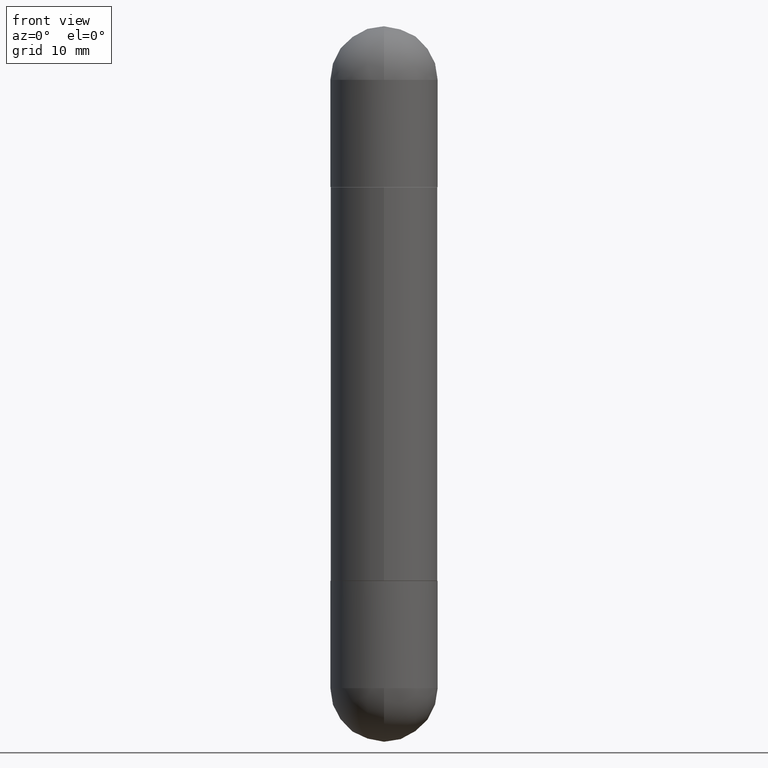
[diagram: clean part render]
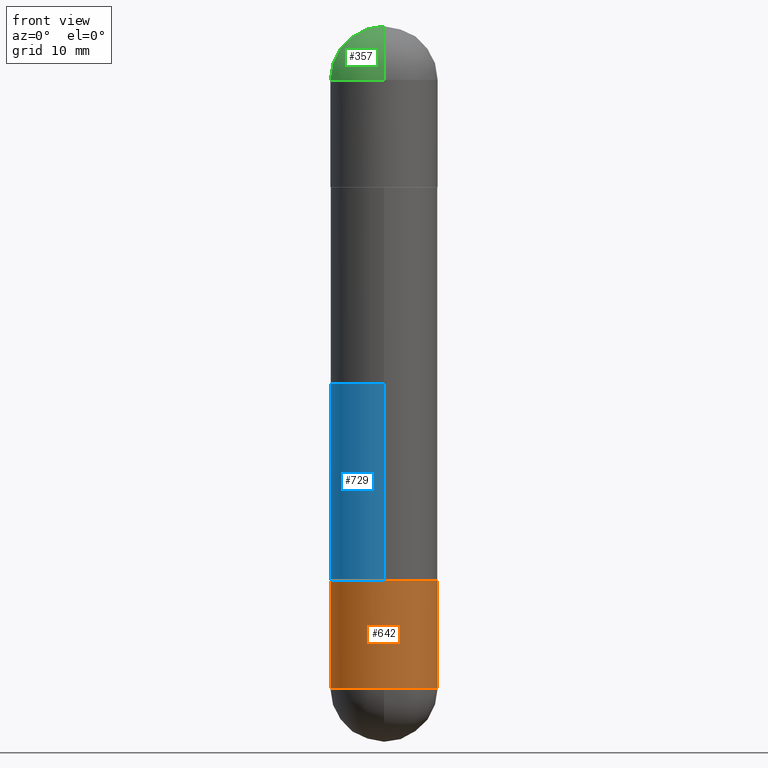
[diagram: same view with three faces highlighted in distinct colors, each labeled with its STEP entity id]
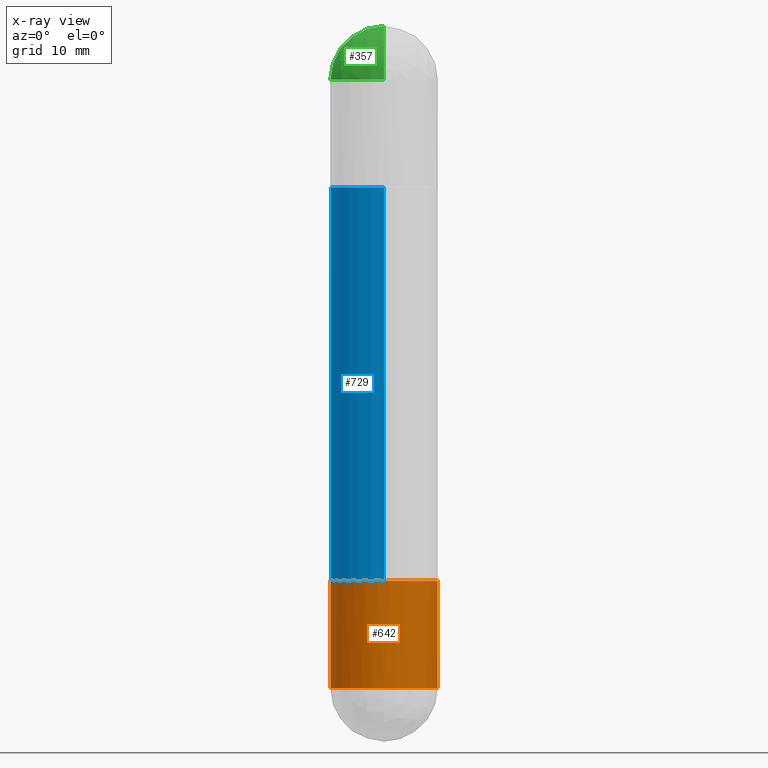
[diagram: x-ray of the same camera — body ghosted, the three highlighted faces saturated]
A machine part, front view with three faces highlighted in distinct colors.
The next image is the same camera in x-ray (body ghosted, the three faces saturated) — at least one of them is partly hidden behind the body in this view.
Their STEP definitions:

[orange] entity #642 — the highlighted cylindrical surface (partial cylindrical patch) has radius 4.7625 mm, axis along (-0, 0, 1).
#14 = EDGE_CURVE ( 'NONE', #319, #111, #464, .T. ) ;
#31 = CARTESIAN_POINT ( 'NONE',  ( -1.332267629550134009E-15, -0.1875000000000084932, -2.312499999999999556 ) ) ;
#35 = EDGE_CURVE ( 'NONE', #200, #319, #604, .T. ) ;
#45 = DIRECTION ( 'NONE',  ( 1.000000000000000000, -6.982962677686270655E-15, 0.000000000000000000 ) ) ;
#53 = CARTESIAN_POINT ( 'NONE',  ( 0.1875000000000000555, -8.729576217442571356E-15, -2.312500000000000000 ) ) ;
#54 = ORIENTED_EDGE ( 'NONE', *, *, #742, .T. ) ;
#55 = AXIS2_PLACEMENT_3D ( 'NONE', #779, #156, #600 ) ;
#76 = DIRECTION ( 'NONE',  ( -2.445468806185136877E-29, 3.491481338843145188E-15, 1.000000000000000000 ) ) ;
#111 = VERTEX_POINT ( 'NONE', #145 ) ;
#145 = CARTESIAN_POINT ( 'NONE',  ( 0.1875000000000000278, -8.075796336744191053E-15, -1.937999999999999945 ) ) ;
#156 = DIRECTION ( 'NONE',  ( -2.445468806185136597E-29, 3.491481338843145583E-15, 1.000000000000000000 ) ) ;
#170 = VERTEX_POINT ( 'NONE', #412 ) ;
#191 = ORIENTED_EDGE ( 'NONE', *, *, #35, .T. ) ;
#194 = DIRECTION ( 'NONE',  ( -2.445468806185136597E-29, 3.491481338843145583E-15, 1.000000000000000000 ) ) ;
#200 = VERTEX_POINT ( 'NONE', #31 ) ;
#209 = DIRECTION ( 'NONE',  ( 1.000000000000000000, -6.982962677686270655E-15, 0.000000000000000000 ) ) ;
#254 = CARTESIAN_POINT ( 'NONE',  ( 0.1875000000000000555, -1.309305502066175205E-15, 9.142831454617382414E-30 ) ) ;
#319 = VERTEX_POINT ( 'NONE', #53 ) ;
#327 = EDGE_CURVE ( 'NONE', #170, #619, #694, .T. ) ;
#332 = ORIENTED_EDGE ( 'NONE', *, *, #14, .T. ) ;
#359 = CARTESIAN_POINT ( 'NONE',  ( -0.1875000000000000555, 1.332267629550188243E-15, -9.223003294227950793E-30 ) ) ;
#367 = DIRECTION ( 'NONE',  ( -2.445468806185136877E-29, 3.491481338843145188E-15, 1.000000000000000000 ) ) ;
#369 = CARTESIAN_POINT ( 'NONE',  ( 4.739318546386794397E-29, -6.766490834678016045E-15, -1.937999999999999945 ) ) ;
#373 = DIRECTION ( 'NONE',  ( -2.445468806185136597E-29, 3.491481338843145583E-15, 1.000000000000000000 ) ) ;
#402 = AXIS2_PLACEMENT_3D ( 'NONE', #448, #194, #209 ) ;
#412 = CARTESIAN_POINT ( 'NONE',  ( -0.1875000000000000555, -6.088003085826207710E-15, -2.312500000000000000 ) ) ;
#418 = ORIENTED_EDGE ( 'NONE', *, *, #737, .F. ) ;
#448 = CARTESIAN_POINT ( 'NONE',  ( 5.655146614303128380E-29, -8.074050596074775072E-15, -2.312500000000000000 ) ) ;
#457 = ORIENTED_EDGE ( 'NONE', *, *, #327, .F. ) ;
#464 = LINE ( 'NONE', #254, #482 ) ;
#482 = VECTOR ( 'NONE', #76, 39.37007874015748143 ) ;
#490 = CARTESIAN_POINT ( 'NONE',  ( 5.655146614303128380E-29, -8.074050596074775072E-15, -2.312500000000000000 ) ) ;
#540 = CIRCLE ( 'NONE', #646, 0.1875000000000000278 ) ;
#600 = DIRECTION ( 'NONE',  ( 1.000000000000000000, -6.982962677686265922E-15, 4.876176775795935793E-29 ) ) ;
#604 = CIRCLE ( 'NONE', #402, 0.1875000000000000555 ) ;
#610 = CARTESIAN_POINT ( 'NONE',  ( -0.1875000000000000278, -6.088003085826206921E-15, -1.937999999999999945 ) ) ;
#619 = VERTEX_POINT ( 'NONE', #610 ) ;
#630 = EDGE_LOOP ( 'NONE', ( #457, #54, #191, #332, #418 ) ) ;
#632 = AXIS2_PLACEMENT_3D ( 'NONE', #490, #373, #45 ) ;
#642 = ADVANCED_FACE ( 'NONE', ( #665 ), #791, .T. ) ;
#646 = AXIS2_PLACEMENT_3D ( 'NONE', #369, #684, #797 ) ;
#665 = FACE_OUTER_BOUND ( 'NONE', #630, .T. ) ;
#684 = DIRECTION ( 'NONE',  ( -2.445468806185136597E-29, 3.491481338843145583E-15, 1.000000000000000000 ) ) ;
#694 = LINE ( 'NONE', #359, #709 ) ;
#709 = VECTOR ( 'NONE', #367, 39.37007874015748143 ) ;
#737 = EDGE_CURVE ( 'NONE', #619, #111, #540, .T. ) ;
#742 = EDGE_CURVE ( 'NONE', #170, #200, #792, .T. ) ;
#779 = CARTESIAN_POINT ( 'NONE',  ( 0.000000000000000000, 0.000000000000000000, 0.000000000000000000 ) ) ;
#791 = CYLINDRICAL_SURFACE ( 'NONE', #55, 0.1875000000000000555 ) ;
#792 = CIRCLE ( 'NONE', #632, 0.1875000000000000555 ) ;
#797 = DIRECTION ( 'NONE',  ( 1.000000000000000000, -6.982962677686266711E-15, 0.000000000000000000 ) ) ;

[blue] entity #729 — the highlighted cylindrical surface (partial cylindrical patch) has radius 4.7625 mm, axis along (-0, 0, -1).
#7 = CARTESIAN_POINT ( 'NONE',  ( 1.286343374582193722E-15, 0.1874999999999934497, -1.937000000000000499 ) ) ;
#12 = VERTEX_POINT ( 'NONE', #72 ) ;
#42 = VERTEX_POINT ( 'NONE', #715 ) ;
#72 = CARTESIAN_POINT ( 'NONE',  ( 1.286343374582210880E-15, 0.1874999999999935052, -0.5630000000000001670 ) ) ;
#85 = VERTEX_POINT ( 'NONE', #7 ) ;
#116 = DIRECTION ( 'NONE',  ( -2.444965825479166385E-29, 3.492201635841978784E-15, -1.000000000000000000 ) ) ;
#164 = ORIENTED_EDGE ( 'NONE', *, *, #233, .T. ) ;
#171 = FACE_OUTER_BOUND ( 'NONE', #206, .T. ) ;
#182 = DIRECTION ( 'NONE',  ( -2.444965825479166385E-29, 3.492201635841979178E-15, -1.000000000000000000 ) ) ;
#185 = EDGE_CURVE ( 'NONE', #12, #42, #311, .T. ) ;
#206 = EDGE_LOOP ( 'NONE', ( #452, #335, #164, #668 ) ) ;
#207 = AXIS2_PLACEMENT_3D ( 'NONE', #607, #222, #777 ) ;
#222 = DIRECTION ( 'NONE',  ( -2.444965825479166385E-29, 3.492201635841978784E-15, 1.000000000000000000 ) ) ;
#228 = CARTESIAN_POINT ( 'NONE',  ( 4.735898803953145257E-29, -6.764394568625911806E-15, -0.5630000000000008331 ) ) ;
#233 = EDGE_CURVE ( 'NONE', #85, #704, #697, .T. ) ;
#240 = DIRECTION ( 'NONE',  ( -2.444965825479166385E-29, 3.492201635841979178E-15, -1.000000000000000000 ) ) ;
#271 = CARTESIAN_POINT ( 'NONE',  ( -1.309305502066129254E-15, -0.1875000000000069944, -1.936999999999999389 ) ) ;
#311 = CIRCLE ( 'NONE', #484, 0.1875000000000002220 ) ;
#335 = ORIENTED_EDGE ( 'NONE', *, *, #355, .T. ) ;
#348 = DIRECTION ( 'NONE',  ( 2.444965825479166385E-29, -3.492201635841978784E-15, 1.000000000000000000 ) ) ;
#352 = VECTOR ( 'NONE', #182, 39.37007874015748143 ) ;
#355 = EDGE_CURVE ( 'NONE', #12, #85, #486, .T. ) ;
#370 = CARTESIAN_POINT ( 'NONE',  ( 1.286343374582162760E-15, 0.1875000000000001110, -2.500000000000000000 ) ) ;
#374 = AXIS2_PLACEMENT_3D ( 'NONE', #676, #116, #433 ) ;
#410 = EDGE_CURVE ( 'NONE', #42, #704, #506, .T. ) ;
#433 = DIRECTION ( 'NONE',  ( -6.982962677686266711E-15, -1.000000000000000000, -2.913971193241879189E-15 ) ) ;
#452 = ORIENTED_EDGE ( 'NONE', *, *, #185, .F. ) ;
#484 = AXIS2_PLACEMENT_3D ( 'NONE', #228, #348, #674 ) ;
#486 = LINE ( 'NONE', #370, #761 ) ;
#492 = CARTESIAN_POINT ( 'NONE',  ( -1.309305502066175797E-15, -0.1875000000000001110, -2.500000000000001332 ) ) ;
#506 = LINE ( 'NONE', #492, #352 ) ;
#607 = CARTESIAN_POINT ( 'NONE',  ( 4.735898803953145257E-29, -6.764394568625911806E-15, -1.936999999999999833 ) ) ;
#668 = ORIENTED_EDGE ( 'NONE', *, *, #410, .F. ) ;
#674 = DIRECTION ( 'NONE',  ( -6.982962677686265922E-15, -1.000000000000000000, -3.642463991552347014E-15 ) ) ;
#676 = CARTESIAN_POINT ( 'NONE',  ( 0.000000000000000000, 0.000000000000000000, -2.500000000000000444 ) ) ;
#697 = CIRCLE ( 'NONE', #207, 0.1875000000000002220 ) ;
#704 = VERTEX_POINT ( 'NONE', #271 ) ;
#715 = CARTESIAN_POINT ( 'NONE',  ( -1.309305502066128860E-15, -0.1875000000000069389, -0.5630000000000014992 ) ) ;
#729 = ADVANCED_FACE ( 'NONE', ( #171 ), #740, .T. ) ;
#740 = CYLINDRICAL_SURFACE ( 'NONE', #374, 0.1875000000000001110 ) ;
#761 = VECTOR ( 'NONE', #240, 39.37007874015748143 ) ;
#777 = DIRECTION ( 'NONE',  ( -6.982962677686265922E-15, -1.000000000000000000, 2.913971193241877216E-15 ) ) ;

[green] entity #357 — the highlighted spherical surface has radius 4.7625 mm.
#21 = AXIS2_PLACEMENT_3D ( 'NONE', #273, #218, #36 ) ;
#36 = DIRECTION ( 'NONE',  ( 1.000000000000000000, -6.982962677686270655E-15, 0.000000000000000000 ) ) ;
#37 = DIRECTION ( 'NONE',  ( -6.982962677686265922E-15, -1.000000000000000000, 0.000000000000000000 ) ) ;
#40 = DIRECTION ( 'NONE',  ( 1.000000000000000000, -6.982962677686266711E-15, -4.883557194083113462E-29 ) ) ;
#46 = CARTESIAN_POINT ( 'NONE',  ( 5.324026836389243254E-29, -8.548232964214825368E-15, -0.1875000000000006661 ) ) ;
#51 = VERTEX_POINT ( 'NONE', #142 ) ;
#71 = AXIS2_PLACEMENT_3D ( 'NONE', #812, #187, #439 ) ;
#142 = CARTESIAN_POINT ( 'NONE',  ( 1.309305502066231017E-15, 0.1874999999999918954, -0.1875000000000000278 ) ) ;
#159 = AXIS2_PLACEMENT_3D ( 'NONE', #564, #754, #302 ) ;
#187 = DIRECTION ( 'NONE',  ( 1.000000000000000000, -6.860497997771530774E-15, -4.840798879624142912E-29 ) ) ;
#210 = EDGE_CURVE ( 'NONE', #399, #51, #230, .T. ) ;
#218 = DIRECTION ( 'NONE',  ( 2.445468806185136597E-29, -3.491481338843145583E-15, 1.000000000000000000 ) ) ;
#230 = CIRCLE ( 'NONE', #724, 0.1875000000000003331 ) ;
#244 = CIRCLE ( 'NONE', #159, 0.1875000000000000555 ) ;
#266 = EDGE_LOOP ( 'NONE', ( #299, #719, #529, #515 ) ) ;
#273 = CARTESIAN_POINT ( 'NONE',  ( 5.655146614303128380E-29, -8.074050596074775072E-15, -0.1875000000000006661 ) ) ;
#297 = SPHERICAL_SURFACE ( 'NONE', #554, 0.1875000000000003331 ) ;
#299 = ORIENTED_EDGE ( 'NONE', *, *, #443, .F. ) ;
#302 = DIRECTION ( 'NONE',  ( 1.000000000000000000, -6.982962677686270655E-15, 0.000000000000000000 ) ) ;
#356 = CARTESIAN_POINT ( 'NONE',  ( 5.324026836389243254E-29, -8.548232964214825368E-15, -0.1875000000000006661 ) ) ;
#357 = ADVANCED_FACE ( 'NONE', ( #497 ), #297, .T. ) ;
#390 = VERTEX_POINT ( 'NONE', #444 ) ;
#394 = VERTEX_POINT ( 'NONE', #556 ) ;
#399 = VERTEX_POINT ( 'NONE', #798 ) ;
#429 = EDGE_CURVE ( 'NONE', #51, #394, #244, .T. ) ;
#439 = DIRECTION ( 'NONE',  ( 6.860497997771530774E-15, 1.000000000000000000, 0.000000000000000000 ) ) ;
#443 = EDGE_CURVE ( 'NONE', #399, #390, #636, .T. ) ;
#444 = CARTESIAN_POINT ( 'NONE',  ( -1.286343374582108525E-15, -0.1875000000000084932, -0.1875000000000013045 ) ) ;
#497 = FACE_OUTER_BOUND ( 'NONE', #266, .T. ) ;
#515 = ORIENTED_EDGE ( 'NONE', *, *, #592, .T. ) ;
#529 = ORIENTED_EDGE ( 'NONE', *, *, #429, .T. ) ;
#553 = DIRECTION ( 'NONE',  ( 6.982962677686266711E-15, 1.000000000000000000, 3.460340791974727494E-15 ) ) ;
#554 = AXIS2_PLACEMENT_3D ( 'NONE', #46, #40, #553 ) ;
#556 = CARTESIAN_POINT ( 'NONE',  ( -0.1875000000000000555, -6.133927340794233391E-15, -0.1875000000000006661 ) ) ;
#564 = CARTESIAN_POINT ( 'NONE',  ( 5.655146614303128380E-29, -8.074050596074775072E-15, -0.1875000000000006661 ) ) ;
#568 = CIRCLE ( 'NONE', #21, 0.1875000000000000555 ) ;
#592 = EDGE_CURVE ( 'NONE', #394, #390, #568, .T. ) ;
#611 = DIRECTION ( 'NONE',  ( -1.000000000000000000, 6.982962677686265922E-15, 4.883557194083112340E-29 ) ) ;
#636 = CIRCLE ( 'NONE', #71, 0.1875000000000003331 ) ;
#719 = ORIENTED_EDGE ( 'NONE', *, *, #210, .T. ) ;
#724 = AXIS2_PLACEMENT_3D ( 'NONE', #356, #611, #37 ) ;
#754 = DIRECTION ( 'NONE',  ( 2.445468806185136597E-29, -3.491481338843145583E-15, 1.000000000000000000 ) ) ;
#798 = CARTESIAN_POINT ( 'NONE',  ( 5.790569421510013204E-29, -9.191404651505909607E-15, -3.414809992080329023E-16 ) ) ;
#812 = CARTESIAN_POINT ( 'NONE',  ( 5.324026836389243254E-29, -8.548232964214825368E-15, -0.1875000000000006661 ) ) ;